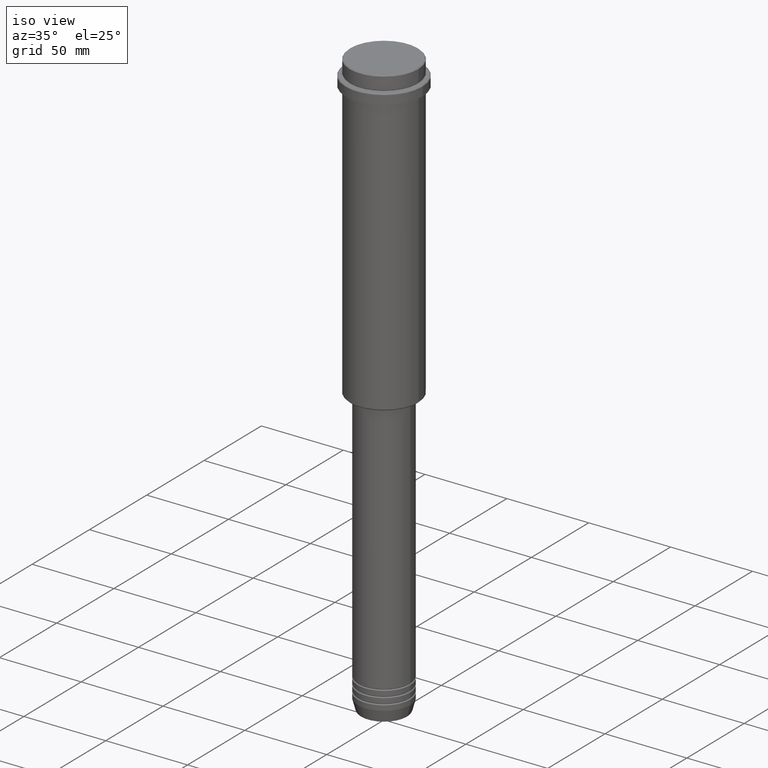
[diagram: clean part render]
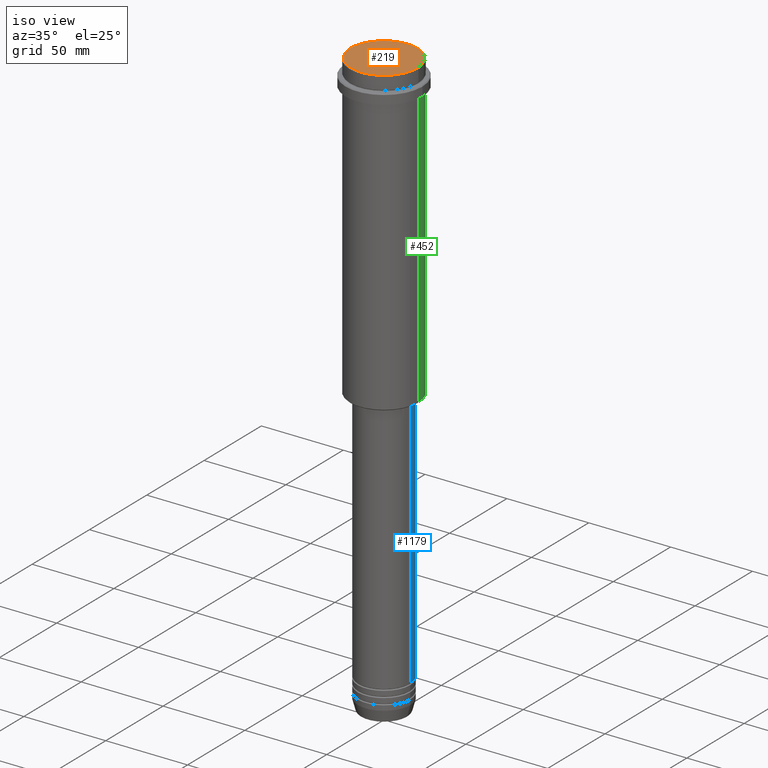
[diagram: same view with three faces highlighted in distinct colors, each labeled with its STEP entity id]
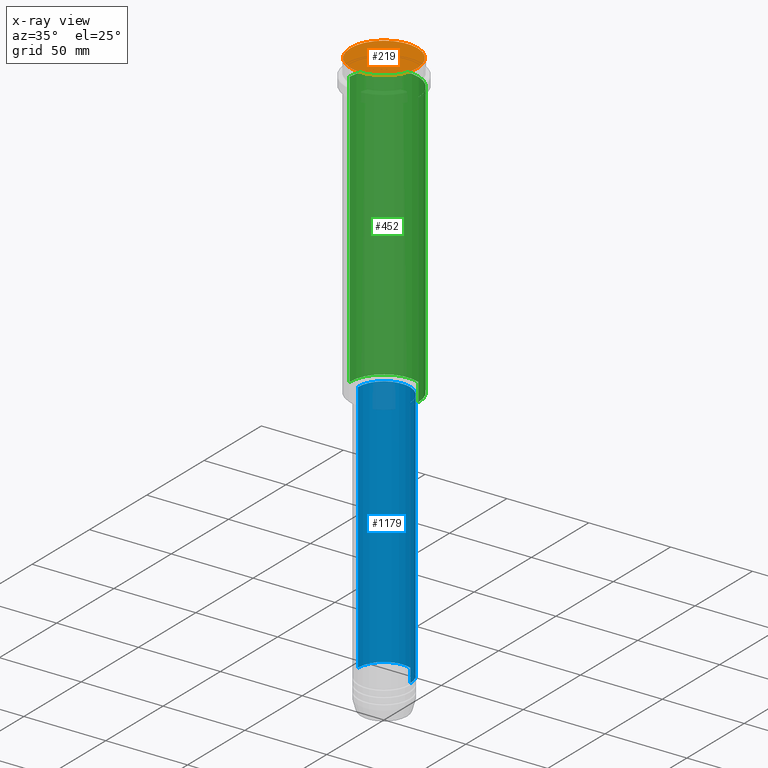
[diagram: x-ray of the same camera — body ghosted, the three highlighted faces saturated]
A machine part, iso view with three faces highlighted in distinct colors.
The next image is the same camera in x-ray (body ghosted, the three faces saturated) — at least one of them is partly hidden behind the body in this view.
Their STEP definitions:

[orange] entity #219 — the highlighted planar face has unit normal (0, -0, 1).
#100 = VERTEX_POINT ( 'NONE', #757 ) ;
#122 = DIRECTION ( 'NONE',  ( 0.000000000000000000, -0.000000000000000000, 1.000000000000000000 ) ) ;
#126 = AXIS2_PLACEMENT_3D ( 'NONE', #981, #647, #436 ) ;
#155 = VERTEX_POINT ( 'NONE', #1033 ) ;
#204 = EDGE_CURVE ( 'NONE', #100, #155, #579, .T. ) ;
#209 = CARTESIAN_POINT ( 'NONE',  ( 0.000000000000000000, 0.000000000000000000, 0.000000000000000000 ) ) ;
#219 = ADVANCED_FACE ( 'NONE', ( #231 ), #1212, .T. ) ;
#231 = FACE_OUTER_BOUND ( 'NONE', #1011, .T. ) ;
#323 = AXIS2_PLACEMENT_3D ( 'NONE', #1108, #344, #1014 ) ;
#344 = DIRECTION ( 'NONE',  ( -0.000000000000000000, -0.000000000000000000, 1.000000000000000000 ) ) ;
#436 = DIRECTION ( 'NONE',  ( 1.000000000000000000, 0.000000000000000000, 0.000000000000000000 ) ) ;
#579 = CIRCLE ( 'NONE', #126, 20.50000000000001776 ) ;
#647 = DIRECTION ( 'NONE',  ( -0.000000000000000000, -0.000000000000000000, 1.000000000000000000 ) ) ;
#757 = CARTESIAN_POINT ( 'NONE',  ( 20.50000000000001776, 2.541142108230758663E-15, 0.000000000000000000 ) ) ;
#825 = DIRECTION ( 'NONE',  ( 1.000000000000000000, 0.000000000000000000, 0.000000000000000000 ) ) ;
#896 = AXIS2_PLACEMENT_3D ( 'NONE', #209, #122, #825 ) ;
#931 = CIRCLE ( 'NONE', #323, 20.50000000000001776 ) ;
#981 = CARTESIAN_POINT ( 'NONE',  ( 0.000000000000000000, 0.000000000000000000, 0.000000000000000000 ) ) ;
#1011 = EDGE_LOOP ( 'NONE', ( #1233, #1152 ) ) ;
#1014 = DIRECTION ( 'NONE',  ( 1.000000000000000000, 0.000000000000000000, 0.000000000000000000 ) ) ;
#1033 = CARTESIAN_POINT ( 'NONE',  ( -20.50000000000001776, 0.000000000000000000, 0.000000000000000000 ) ) ;
#1108 = CARTESIAN_POINT ( 'NONE',  ( 0.000000000000000000, 0.000000000000000000, 0.000000000000000000 ) ) ;
#1152 = ORIENTED_EDGE ( 'NONE', *, *, #204, .T. ) ;
#1196 = EDGE_CURVE ( 'NONE', #155, #100, #931, .T. ) ;
#1212 = PLANE ( 'NONE',  #896 ) ;
#1233 = ORIENTED_EDGE ( 'NONE', *, *, #1196, .T. ) ;

[blue] entity #1179 — the highlighted cylindrical surface (edge-blend (fillet) strip) has radius 16 mm, axis along (-0, -0, 1).
#16 = CYLINDRICAL_SURFACE ( 'NONE', #1372, 16.00000000000000000 ) ;
#62 = ORIENTED_EDGE ( 'NONE', *, *, #969, .T. ) ;
#200 = VECTOR ( 'NONE', #770, 1000.000000000000000 ) ;
#234 = DIRECTION ( 'NONE',  ( -0.000000000000000000, -0.000000000000000000, 1.000000000000000000 ) ) ;
#343 = CARTESIAN_POINT ( 'NONE',  ( 16.00000000000000355, 0.000000000000000000, -185.9999999999999147 ) ) ;
#366 = ORIENTED_EDGE ( 'NONE', *, *, #888, .F. ) ;
#373 = VERTEX_POINT ( 'NONE', #343 ) ;
#405 = CARTESIAN_POINT ( 'NONE',  ( -16.00000000000000000, 1.959434878635765131E-15, -340.9999999999998863 ) ) ;
#421 = VERTEX_POINT ( 'NONE', #955 ) ;
#440 = DIRECTION ( 'NONE',  ( 1.000000000000000000, 0.000000000000000000, 0.000000000000000000 ) ) ;
#444 = VECTOR ( 'NONE', #234, 1000.000000000000000 ) ;
#447 = CARTESIAN_POINT ( 'NONE',  ( 0.000000000000000000, 0.000000000000000000, 0.000000000000000000 ) ) ;
#517 = CARTESIAN_POINT ( 'NONE',  ( 0.000000000000000000, 0.000000000000000000, -185.9999999999999147 ) ) ;
#518 = EDGE_CURVE ( 'NONE', #421, #373, #865, .T. ) ;
#545 = EDGE_CURVE ( 'NONE', #1345, #837, #1295, .T. ) ;
#615 = ORIENTED_EDGE ( 'NONE', *, *, #545, .T. ) ;
#659 = DIRECTION ( 'NONE',  ( -0.000000000000000000, -0.000000000000000000, 1.000000000000000000 ) ) ;
#743 = CARTESIAN_POINT ( 'NONE',  ( -16.00000000000000000, 1.959434878635765131E-15, 0.000000000000000000 ) ) ;
#770 = DIRECTION ( 'NONE',  ( -0.000000000000000000, -0.000000000000000000, 1.000000000000000000 ) ) ;
#798 = ORIENTED_EDGE ( 'NONE', *, *, #518, .F. ) ;
#837 = VERTEX_POINT ( 'NONE', #1234 ) ;
#865 = LINE ( 'NONE', #1316, #444 ) ;
#875 = AXIS2_PLACEMENT_3D ( 'NONE', #517, #1158, #1267 ) ;
#888 = EDGE_CURVE ( 'NONE', #373, #837, #1410, .T. ) ;
#893 = DIRECTION ( 'NONE',  ( -0.000000000000000000, -0.000000000000000000, 1.000000000000000000 ) ) ;
#955 = CARTESIAN_POINT ( 'NONE',  ( 16.00000000000000000, 0.000000000000000000, -340.9999999999998863 ) ) ;
#969 = EDGE_CURVE ( 'NONE', #421, #1345, #1015, .T. ) ;
#994 = FACE_OUTER_BOUND ( 'NONE', #1235, .T. ) ;
#1015 = CIRCLE ( 'NONE', #1133, 16.00000000000000000 ) ;
#1094 = CARTESIAN_POINT ( 'NONE',  ( 0.000000000000000000, 0.000000000000000000, -340.9999999999998863 ) ) ;
#1133 = AXIS2_PLACEMENT_3D ( 'NONE', #1094, #659, #440 ) ;
#1158 = DIRECTION ( 'NONE',  ( -0.000000000000000000, -0.000000000000000000, 1.000000000000000000 ) ) ;
#1179 = ADVANCED_FACE ( 'NONE', ( #994 ), #16, .T. ) ;
#1234 = CARTESIAN_POINT ( 'NONE',  ( -16.00000000000000355, 1.959434878635765526E-15, -185.9999999999999147 ) ) ;
#1235 = EDGE_LOOP ( 'NONE', ( #62, #615, #366, #798 ) ) ;
#1267 = DIRECTION ( 'NONE',  ( 1.000000000000000000, 0.000000000000000000, 0.000000000000000000 ) ) ;
#1295 = LINE ( 'NONE', #743, #200 ) ;
#1316 = CARTESIAN_POINT ( 'NONE',  ( 16.00000000000000000, 0.000000000000000000, 0.000000000000000000 ) ) ;
#1326 = DIRECTION ( 'NONE',  ( 1.000000000000000000, 0.000000000000000000, 0.000000000000000000 ) ) ;
#1345 = VERTEX_POINT ( 'NONE', #405 ) ;
#1372 = AXIS2_PLACEMENT_3D ( 'NONE', #447, #893, #1326 ) ;
#1410 = CIRCLE ( 'NONE', #875, 16.00000000000000355 ) ;

[green] entity #452 — the highlighted cylindrical surface (partial cylindrical patch) has radius 21 mm, axis along (-0, -0, 1).
#52 = DIRECTION ( 'NONE',  ( -0.000000000000000000, -0.000000000000000000, 1.000000000000000000 ) ) ;
#75 = ORIENTED_EDGE ( 'NONE', *, *, #1230, .T. ) ;
#88 = CARTESIAN_POINT ( 'NONE',  ( 0.000000000000000000, 0.000000000000000000, 0.000000000000000000 ) ) ;
#130 = VERTEX_POINT ( 'NONE', #767 ) ;
#178 = CARTESIAN_POINT ( 'NONE',  ( 0.000000000000000000, 0.000000000000000000, -16.00000000000000355 ) ) ;
#203 = CIRCLE ( 'NONE', #467, 20.99999999999999645 ) ;
#208 = ORIENTED_EDGE ( 'NONE', *, *, #761, .T. ) ;
#279 = CARTESIAN_POINT ( 'NONE',  ( 20.99999999999999645, 0.000000000000000000, -16.00000000000000355 ) ) ;
#296 = DIRECTION ( 'NONE',  ( -1.000000000000000000, 0.000000000000000000, 0.000000000000000000 ) ) ;
#452 = ADVANCED_FACE ( 'NONE', ( #1340 ), #1231, .T. ) ;
#465 = AXIS2_PLACEMENT_3D ( 'NONE', #934, #1376, #296 ) ;
#467 = AXIS2_PLACEMENT_3D ( 'NONE', #178, #851, #1247 ) ;
#581 = AXIS2_PLACEMENT_3D ( 'NONE', #88, #932, #911 ) ;
#609 = EDGE_CURVE ( 'NONE', #692, #614, #203, .T. ) ;
#614 = VERTEX_POINT ( 'NONE', #1355 ) ;
#675 = CARTESIAN_POINT ( 'NONE',  ( -20.99999999999999645, 2.571758278209441267E-15, 0.000000000000000000 ) ) ;
#692 = VERTEX_POINT ( 'NONE', #279 ) ;
#753 = CARTESIAN_POINT ( 'NONE',  ( 20.99999999999999645, 0.000000000000000000, 0.000000000000000000 ) ) ;
#761 = EDGE_CURVE ( 'NONE', #945, #614, #915, .T. ) ;
#765 = VECTOR ( 'NONE', #52, 1000.000000000000000 ) ;
#767 = CARTESIAN_POINT ( 'NONE',  ( 20.99999999999999645, 0.000000000000000000, -184.5000000000000284 ) ) ;
#829 = CIRCLE ( 'NONE', #465, 20.99999999999999645 ) ;
#851 = DIRECTION ( 'NONE',  ( -0.000000000000000000, -0.000000000000000000, 1.000000000000000000 ) ) ;
#911 = DIRECTION ( 'NONE',  ( 1.000000000000000000, 0.000000000000000000, 0.000000000000000000 ) ) ;
#915 = LINE ( 'NONE', #675, #765 ) ;
#930 = ORIENTED_EDGE ( 'NONE', *, *, #1030, .F. ) ;
#932 = DIRECTION ( 'NONE',  ( -0.000000000000000000, -0.000000000000000000, 1.000000000000000000 ) ) ;
#934 = CARTESIAN_POINT ( 'NONE',  ( 0.000000000000000000, 0.000000000000000000, -184.5000000000000284 ) ) ;
#945 = VERTEX_POINT ( 'NONE', #1283 ) ;
#962 = DIRECTION ( 'NONE',  ( -0.000000000000000000, -0.000000000000000000, 1.000000000000000000 ) ) ;
#1030 = EDGE_CURVE ( 'NONE', #130, #692, #1081, .T. ) ;
#1063 = VECTOR ( 'NONE', #962, 1000.000000000000000 ) ;
#1081 = LINE ( 'NONE', #753, #1063 ) ;
#1151 = ORIENTED_EDGE ( 'NONE', *, *, #609, .F. ) ;
#1230 = EDGE_CURVE ( 'NONE', #130, #945, #829, .T. ) ;
#1231 = CYLINDRICAL_SURFACE ( 'NONE', #581, 20.99999999999999645 ) ;
#1247 = DIRECTION ( 'NONE',  ( 1.000000000000000000, 0.000000000000000000, 0.000000000000000000 ) ) ;
#1283 = CARTESIAN_POINT ( 'NONE',  ( -20.99999999999999645, 2.571758278209441267E-15, -184.5000000000000284 ) ) ;
#1307 = EDGE_LOOP ( 'NONE', ( #75, #208, #1151, #930 ) ) ;
#1340 = FACE_OUTER_BOUND ( 'NONE', #1307, .T. ) ;
#1355 = CARTESIAN_POINT ( 'NONE',  ( -20.99999999999999645, 2.571758278209441267E-15, -16.00000000000000355 ) ) ;
#1376 = DIRECTION ( 'NONE',  ( -0.000000000000000000, -0.000000000000000000, 1.000000000000000000 ) ) ;